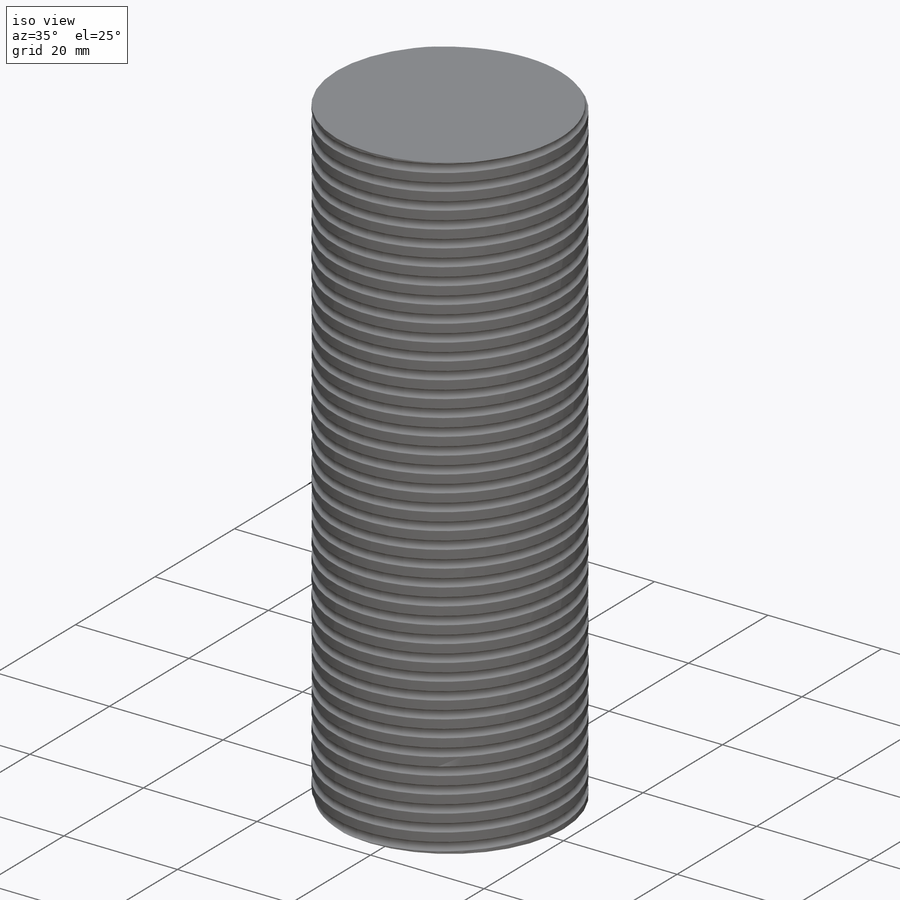
[diagram: iso view]
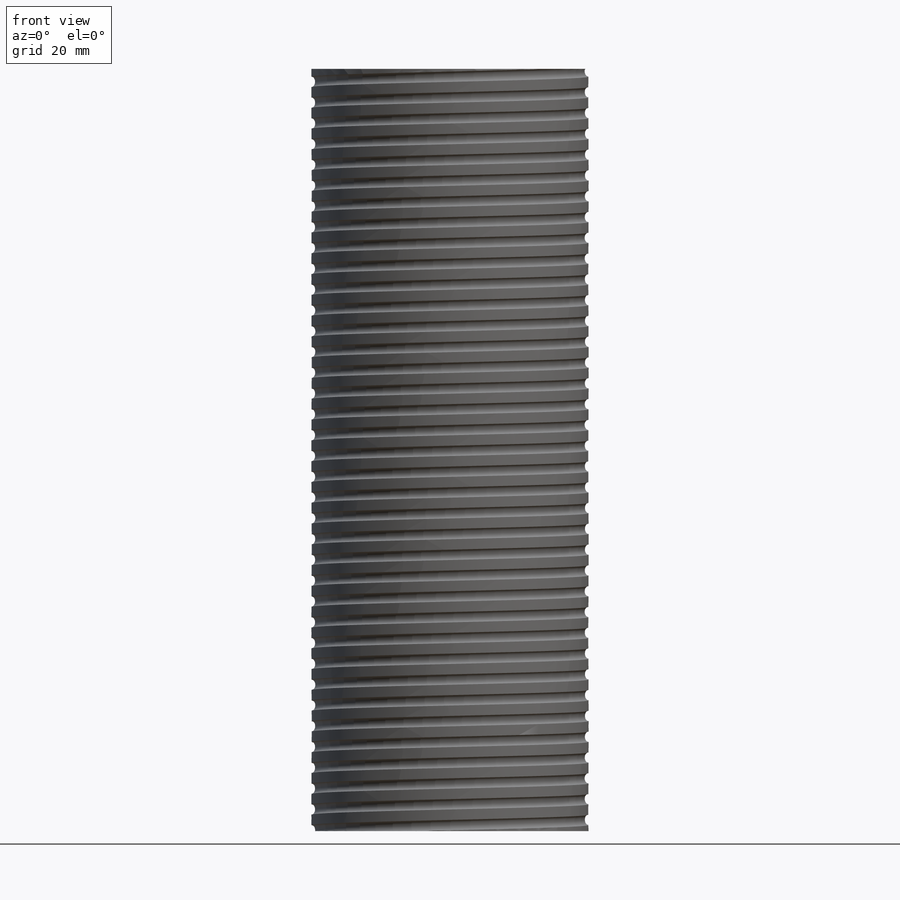
[diagram: front view]
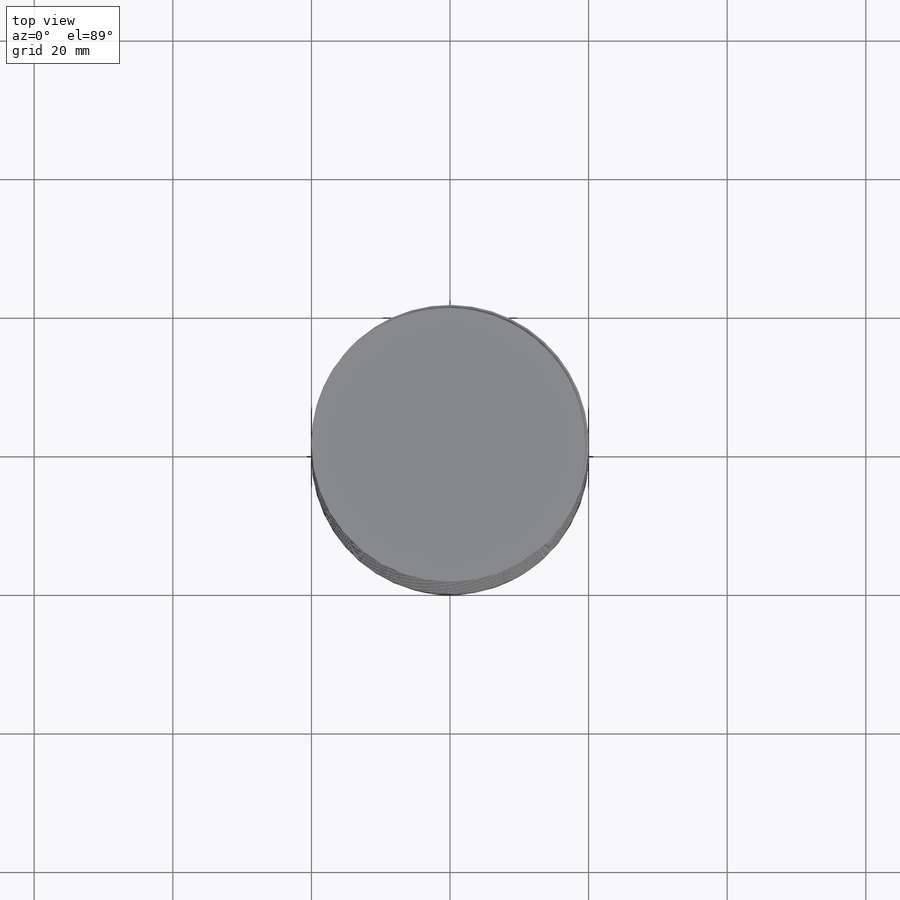
[diagram: top view]
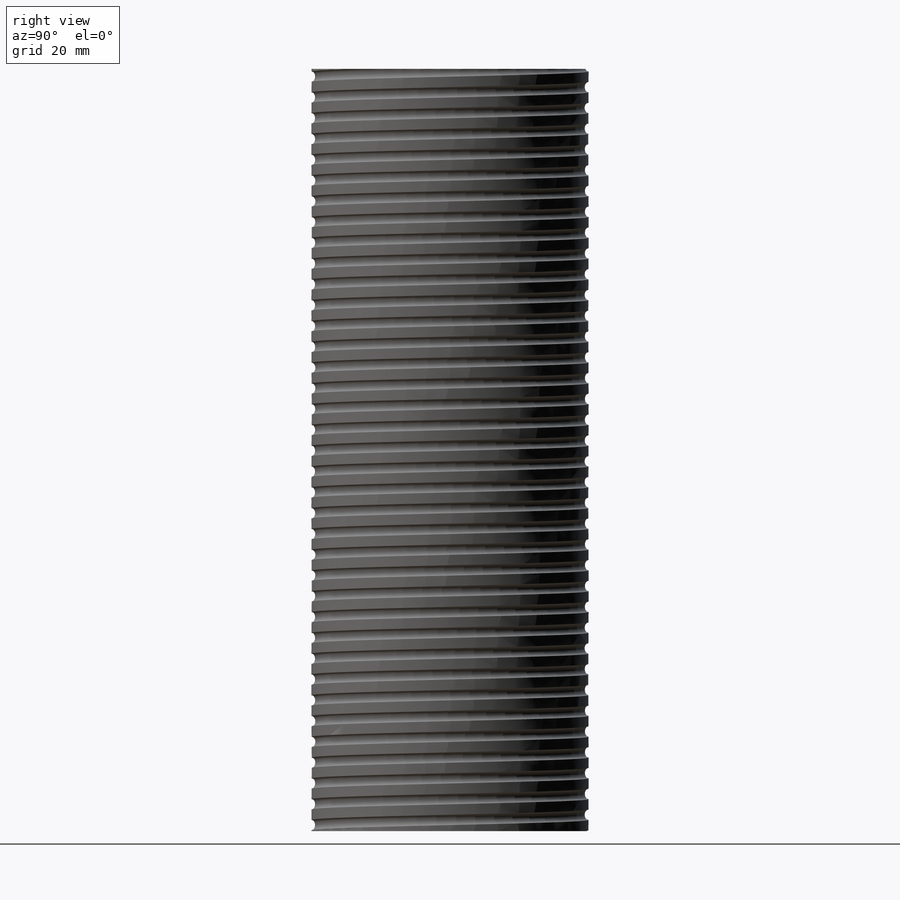
[diagram: right view]
SOLIDWORKS PART (.sldprt)
format: sldprt  version: not decoded by parser v0  size: 1,690,112 bytes
history: native  units: mm
features: sketch x5, material x1, extrude x1, helix x1, plane x1, sweep x1 (+11 scaffold rows collapsed)
feature tree (21):
  scaffold x11  (default folders/planes/origin — collapsed)
  material  "Material <not specified>"
  sketch  "Sketch1"  dims[D1=40.0mm]
  extrude  "Boss-Extrude1"  Depth=110mm
  sketch  "Sketch2"
  helix  "Helix/Spiral1"  Pitch=116.25mm
  plane  "Plane1"
  sketch  "Sketch3"  dims[D1=1.5mm]
  sweep  "Cut-Sweep1"
  sketch  "Sketch4"  dims[D1=15.0mm]
  sketch  "Sketch5"
decode coverage: 5 of 8 modeling features carry decoded parameters
note: suppression state not decoded; provenance and decode notes live in map.json
